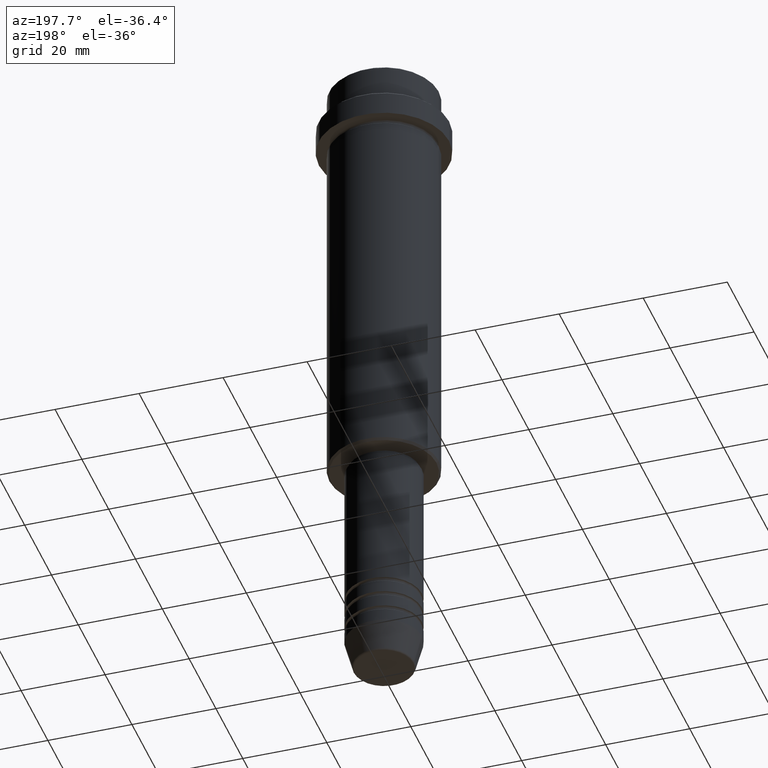
[diagram: clean part render]
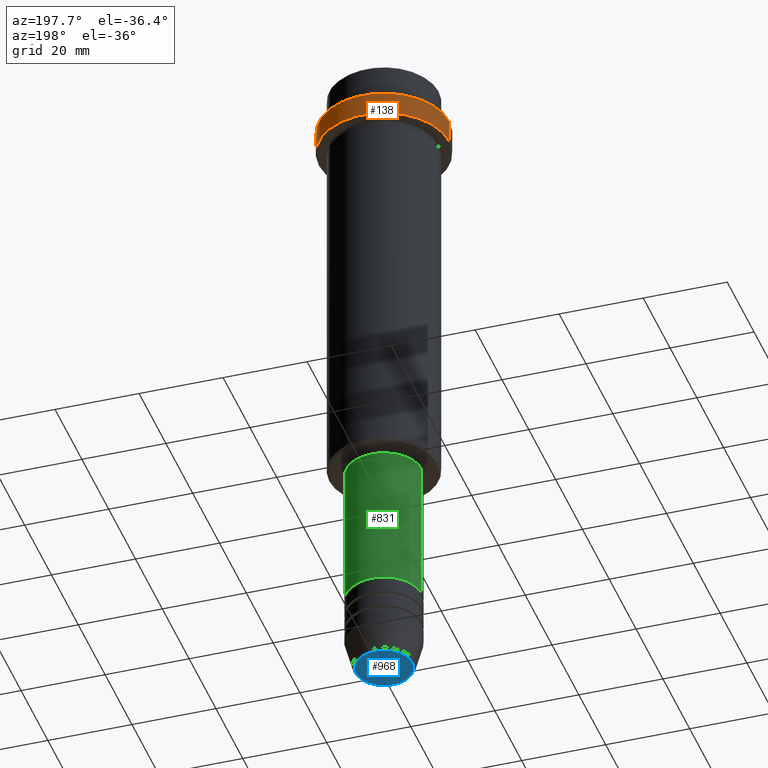
[diagram: same view with three faces highlighted in distinct colors, each labeled with its STEP entity id]
A machine part, auxiliary view with three faces highlighted in distinct colors.
Their STEP definitions:

[orange] entity #138 — the highlighted cylindrical surface (partial cylindrical patch) has radius 15.5 mm, axis along (-0, -0, 1).
#37 = VECTOR ( 'NONE', #1339, 1000.000000000000000 ) ;
#38 = CARTESIAN_POINT ( 'NONE',  ( 0.000000000000000000, 0.000000000000000000, -15.00000000000000000 ) ) ;
#88 = EDGE_CURVE ( 'NONE', #978, #273, #965, .T. ) ;
#123 = LINE ( 'NONE', #1206, #37 ) ;
#138 = ADVANCED_FACE ( 'NONE', ( #1149 ), #1044, .T. ) ;
#204 = VERTEX_POINT ( 'NONE', #1393 ) ;
#229 = LINE ( 'NONE', #1117, #597 ) ;
#231 = EDGE_LOOP ( 'NONE', ( #544, #895, #331, #460 ) ) ;
#273 = VERTEX_POINT ( 'NONE', #838 ) ;
#293 = AXIS2_PLACEMENT_3D ( 'NONE', #859, #1296, #1301 ) ;
#331 = ORIENTED_EDGE ( 'NONE', *, *, #656, .T. ) ;
#375 = CARTESIAN_POINT ( 'NONE',  ( 0.000000000000000000, 0.000000000000000000, 0.000000000000000000 ) ) ;
#460 = ORIENTED_EDGE ( 'NONE', *, *, #1226, .F. ) ;
#481 = DIRECTION ( 'NONE',  ( 1.000000000000000000, 0.000000000000000000, 0.000000000000000000 ) ) ;
#544 = ORIENTED_EDGE ( 'NONE', *, *, #88, .T. ) ;
#597 = VECTOR ( 'NONE', #696, 1000.000000000000000 ) ;
#635 = AXIS2_PLACEMENT_3D ( 'NONE', #38, #1124, #481 ) ;
#656 = EDGE_CURVE ( 'NONE', #784, #204, #1218, .T. ) ;
#696 = DIRECTION ( 'NONE',  ( -0.000000000000000000, -0.000000000000000000, 1.000000000000000000 ) ) ;
#784 = VERTEX_POINT ( 'NONE', #914 ) ;
#832 = DIRECTION ( 'NONE',  ( -0.000000000000000000, -0.000000000000000000, 1.000000000000000000 ) ) ;
#838 = CARTESIAN_POINT ( 'NONE',  ( -15.50000000000000000, 1.898202538678397557E-15, -15.00000000000000000 ) ) ;
#859 = CARTESIAN_POINT ( 'NONE',  ( 0.000000000000000000, 0.000000000000000000, -9.499999999999998224 ) ) ;
#895 = ORIENTED_EDGE ( 'NONE', *, *, #1217, .T. ) ;
#914 = CARTESIAN_POINT ( 'NONE',  ( -15.50000000000000000, 1.898202538678397557E-15, -9.499999999999998224 ) ) ;
#926 = CARTESIAN_POINT ( 'NONE',  ( 15.50000000000000000, 0.000000000000000000, -15.00000000000000000 ) ) ;
#965 = CIRCLE ( 'NONE', #635, 15.50000000000000000 ) ;
#978 = VERTEX_POINT ( 'NONE', #926 ) ;
#1044 = CYLINDRICAL_SURFACE ( 'NONE', #1096, 15.50000000000000000 ) ;
#1096 = AXIS2_PLACEMENT_3D ( 'NONE', #375, #832, #1134 ) ;
#1117 = CARTESIAN_POINT ( 'NONE',  ( 15.50000000000000000, 0.000000000000000000, 0.000000000000000000 ) ) ;
#1124 = DIRECTION ( 'NONE',  ( -0.000000000000000000, -0.000000000000000000, 1.000000000000000000 ) ) ;
#1134 = DIRECTION ( 'NONE',  ( 1.000000000000000000, 0.000000000000000000, 0.000000000000000000 ) ) ;
#1149 = FACE_OUTER_BOUND ( 'NONE', #231, .T. ) ;
#1206 = CARTESIAN_POINT ( 'NONE',  ( -15.50000000000000000, 1.898202538678397557E-15, 0.000000000000000000 ) ) ;
#1217 = EDGE_CURVE ( 'NONE', #273, #784, #123, .T. ) ;
#1218 = CIRCLE ( 'NONE', #293, 15.50000000000000000 ) ;
#1226 = EDGE_CURVE ( 'NONE', #978, #204, #229, .T. ) ;
#1296 = DIRECTION ( 'NONE',  ( 0.000000000000000000, 0.000000000000000000, -1.000000000000000000 ) ) ;
#1301 = DIRECTION ( 'NONE',  ( 1.000000000000000000, 0.000000000000000000, 0.000000000000000000 ) ) ;
#1339 = DIRECTION ( 'NONE',  ( -0.000000000000000000, -0.000000000000000000, 1.000000000000000000 ) ) ;
#1393 = CARTESIAN_POINT ( 'NONE',  ( 15.50000000000000000, 0.000000000000000000, -9.499999999999998224 ) ) ;

[blue] entity #968 — the highlighted planar face has unit normal (0, -0, 1).
#68 = DIRECTION ( 'NONE',  ( 0.000000000000000000, -0.000000000000000000, 1.000000000000000000 ) ) ;
#175 = AXIS2_PLACEMENT_3D ( 'NONE', #1375, #68, #1030 ) ;
#205 = CARTESIAN_POINT ( 'NONE',  ( 0.000000000000000000, 0.000000000000000000, -160.0000000000000000 ) ) ;
#315 = DIRECTION ( 'NONE',  ( 1.000000000000000000, 0.000000000000000000, 0.000000000000000000 ) ) ;
#451 = DIRECTION ( 'NONE',  ( 1.000000000000000000, 0.000000000000000000, 0.000000000000000000 ) ) ;
#610 = PLANE ( 'NONE',  #175 ) ;
#619 = CIRCLE ( 'NONE', #760, 6.740692158992658278 ) ;
#691 = CARTESIAN_POINT ( 'NONE',  ( 6.740692158992658278, 0.000000000000000000, -160.0000000000000000 ) ) ;
#760 = AXIS2_PLACEMENT_3D ( 'NONE', #205, #1081, #315 ) ;
#802 = AXIS2_PLACEMENT_3D ( 'NONE', #1010, #896, #451 ) ;
#896 = DIRECTION ( 'NONE',  ( 0.000000000000000000, 0.000000000000000000, -1.000000000000000000 ) ) ;
#968 = ADVANCED_FACE ( 'NONE', ( #1136 ), #610, .F. ) ;
#1009 = ORIENTED_EDGE ( 'NONE', *, *, #1272, .T. ) ;
#1010 = CARTESIAN_POINT ( 'NONE',  ( 0.000000000000000000, 0.000000000000000000, -160.0000000000000000 ) ) ;
#1030 = DIRECTION ( 'NONE',  ( 1.000000000000000000, 0.000000000000000000, 0.000000000000000000 ) ) ;
#1079 = CIRCLE ( 'NONE', #802, 6.740692158992658278 ) ;
#1081 = DIRECTION ( 'NONE',  ( 0.000000000000000000, 0.000000000000000000, -1.000000000000000000 ) ) ;
#1136 = FACE_OUTER_BOUND ( 'NONE', #1309, .T. ) ;
#1138 = EDGE_CURVE ( 'NONE', #1148, #1319, #619, .T. ) ;
#1148 = VERTEX_POINT ( 'NONE', #1182 ) ;
#1182 = CARTESIAN_POINT ( 'NONE',  ( -6.740692158992658278, 8.550696569392685681E-16, -160.0000000000000000 ) ) ;
#1214 = ORIENTED_EDGE ( 'NONE', *, *, #1138, .T. ) ;
#1272 = EDGE_CURVE ( 'NONE', #1319, #1148, #1079, .T. ) ;
#1309 = EDGE_LOOP ( 'NONE', ( #1009, #1214 ) ) ;
#1319 = VERTEX_POINT ( 'NONE', #691 ) ;
#1375 = CARTESIAN_POINT ( 'NONE',  ( 0.000000000000000000, 0.000000000000000000, -160.0000000000000000 ) ) ;

[green] entity #831 — the highlighted cylindrical surface (partial cylindrical patch) has radius 9 mm, axis along (-0, -0, 1).
#20 = DIRECTION ( 'NONE',  ( 1.000000000000000000, 0.000000000000000000, 0.000000000000000000 ) ) ;
#129 = ORIENTED_EDGE ( 'NONE', *, *, #297, .T. ) ;
#189 = EDGE_CURVE ( 'NONE', #1207, #1105, #1173, .T. ) ;
#294 = AXIS2_PLACEMENT_3D ( 'NONE', #1320, #1098, #20 ) ;
#297 = EDGE_CURVE ( 'NONE', #834, #1207, #1012, .T. ) ;
#343 = CARTESIAN_POINT ( 'NONE',  ( -9.000000000000000000, 1.102182119232617714E-15, -140.9999999999999147 ) ) ;
#397 = VERTEX_POINT ( 'NONE', #456 ) ;
#456 = CARTESIAN_POINT ( 'NONE',  ( 9.000000000000001776, 0.000000000000000000, -106.0000000000000142 ) ) ;
#499 = CIRCLE ( 'NONE', #995, 9.000000000000001776 ) ;
#554 = LINE ( 'NONE', #1060, #759 ) ;
#596 = CARTESIAN_POINT ( 'NONE',  ( 0.000000000000000000, 0.000000000000000000, -140.9999999999999147 ) ) ;
#637 = DIRECTION ( 'NONE',  ( -0.000000000000000000, -0.000000000000000000, 1.000000000000000000 ) ) ;
#642 = DIRECTION ( 'NONE',  ( -0.000000000000000000, -0.000000000000000000, 1.000000000000000000 ) ) ;
#676 = CYLINDRICAL_SURFACE ( 'NONE', #294, 9.000000000000001776 ) ;
#700 = DIRECTION ( 'NONE',  ( 1.000000000000000000, 0.000000000000000000, 0.000000000000000000 ) ) ;
#720 = ORIENTED_EDGE ( 'NONE', *, *, #786, .F. ) ;
#759 = VECTOR ( 'NONE', #637, 1000.000000000000000 ) ;
#781 = CARTESIAN_POINT ( 'NONE',  ( -9.000000000000001776, 1.102182119232617911E-15, 0.000000000000000000 ) ) ;
#786 = EDGE_CURVE ( 'NONE', #397, #1105, #499, .T. ) ;
#814 = DIRECTION ( 'NONE',  ( -0.000000000000000000, -0.000000000000000000, 1.000000000000000000 ) ) ;
#831 = ADVANCED_FACE ( 'NONE', ( #1334 ), #676, .T. ) ;
#834 = VERTEX_POINT ( 'NONE', #1230 ) ;
#872 = EDGE_LOOP ( 'NONE', ( #129, #1118, #720, #1341 ) ) ;
#915 = DIRECTION ( 'NONE',  ( -0.000000000000000000, -0.000000000000000000, 1.000000000000000000 ) ) ;
#946 = VECTOR ( 'NONE', #642, 1000.000000000000000 ) ;
#995 = AXIS2_PLACEMENT_3D ( 'NONE', #1120, #814, #1327 ) ;
#1012 = CIRCLE ( 'NONE', #1189, 9.000000000000000000 ) ;
#1060 = CARTESIAN_POINT ( 'NONE',  ( 9.000000000000001776, 0.000000000000000000, 0.000000000000000000 ) ) ;
#1087 = EDGE_CURVE ( 'NONE', #834, #397, #554, .T. ) ;
#1098 = DIRECTION ( 'NONE',  ( -0.000000000000000000, -0.000000000000000000, 1.000000000000000000 ) ) ;
#1105 = VERTEX_POINT ( 'NONE', #1288 ) ;
#1118 = ORIENTED_EDGE ( 'NONE', *, *, #189, .T. ) ;
#1120 = CARTESIAN_POINT ( 'NONE',  ( 0.000000000000000000, 0.000000000000000000, -106.0000000000000142 ) ) ;
#1173 = LINE ( 'NONE', #781, #946 ) ;
#1189 = AXIS2_PLACEMENT_3D ( 'NONE', #596, #915, #700 ) ;
#1207 = VERTEX_POINT ( 'NONE', #343 ) ;
#1230 = CARTESIAN_POINT ( 'NONE',  ( 9.000000000000000000, 0.000000000000000000, -140.9999999999999147 ) ) ;
#1288 = CARTESIAN_POINT ( 'NONE',  ( -9.000000000000001776, 1.102182119232617911E-15, -106.0000000000000142 ) ) ;
#1320 = CARTESIAN_POINT ( 'NONE',  ( 0.000000000000000000, 0.000000000000000000, 0.000000000000000000 ) ) ;
#1327 = DIRECTION ( 'NONE',  ( 1.000000000000000000, 0.000000000000000000, 0.000000000000000000 ) ) ;
#1334 = FACE_OUTER_BOUND ( 'NONE', #872, .T. ) ;
#1341 = ORIENTED_EDGE ( 'NONE', *, *, #1087, .F. ) ;